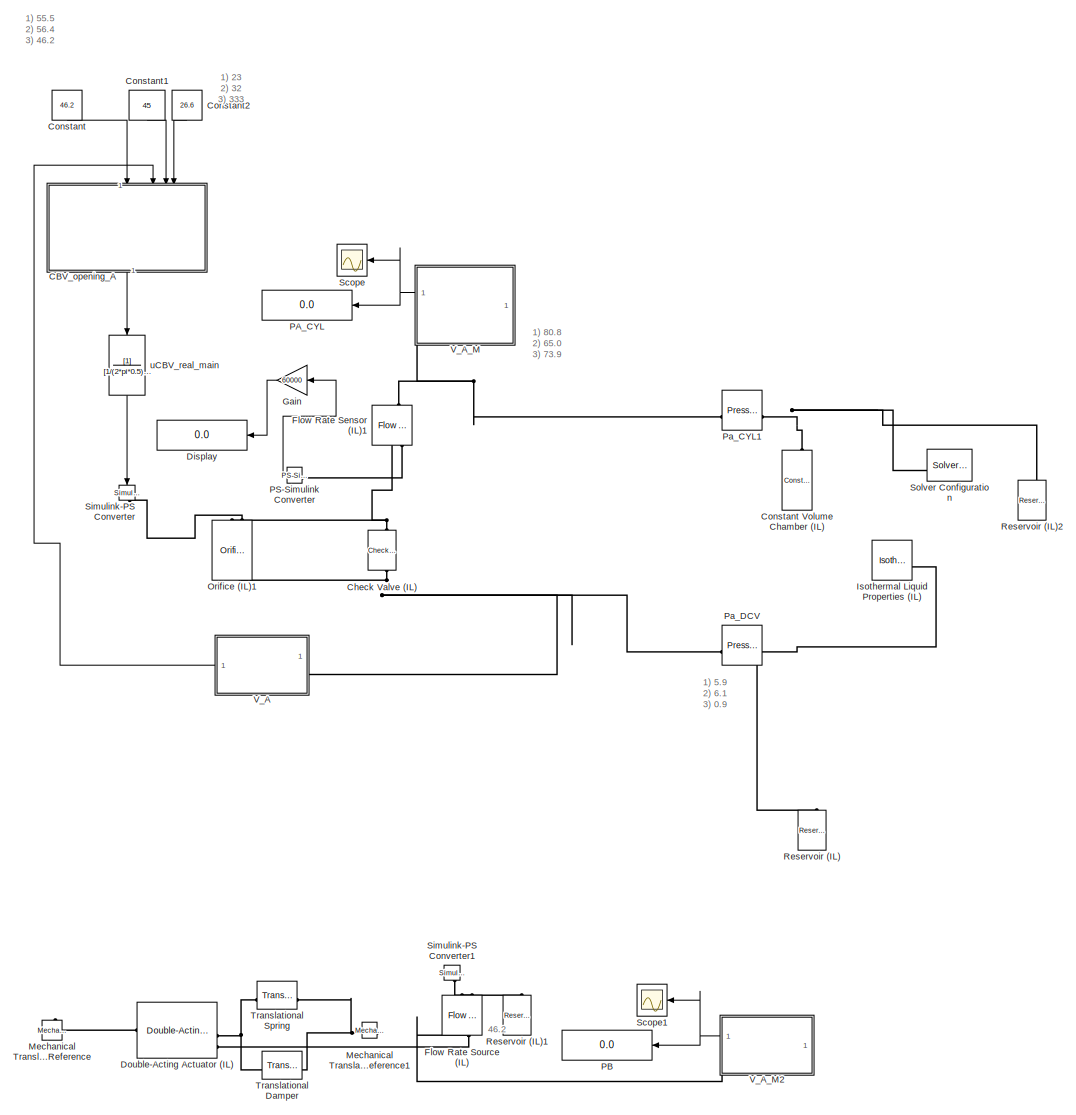
[diagram: root canvas - part 1/2, center side, full height]
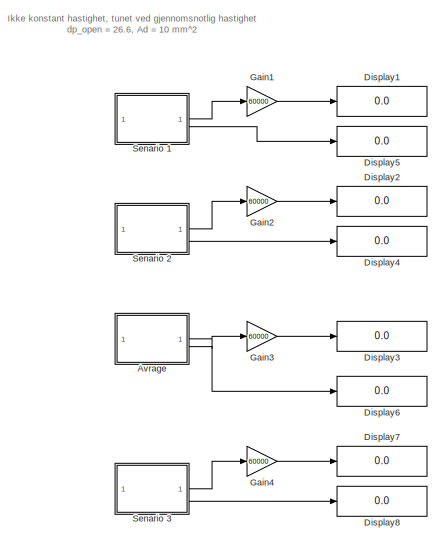
[diagram: root canvas - part 2/2, middle left region]
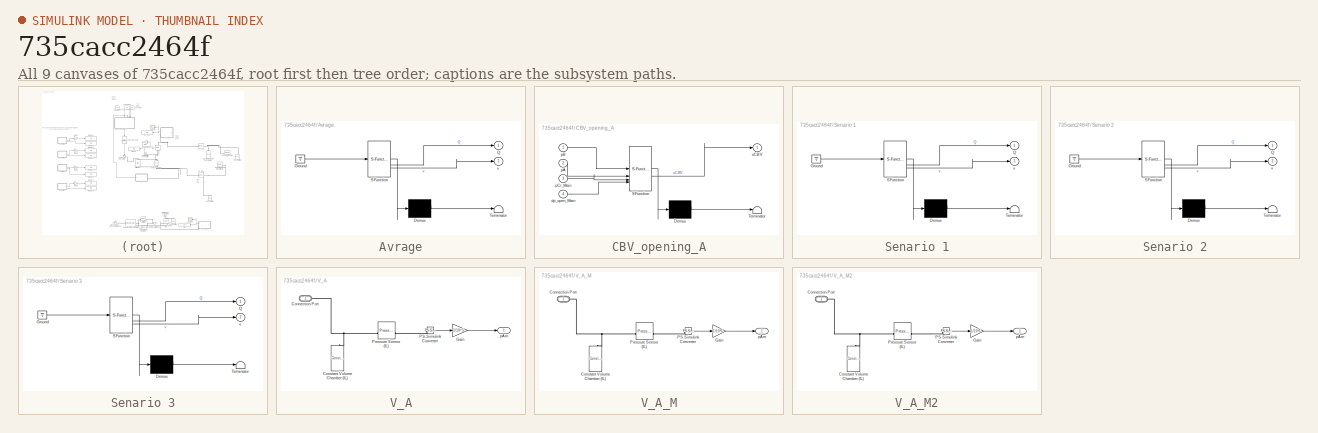
[diagram: thumbnail index - all 9 canvases of the model, root first then tree order]
MODEL slx_735cacc2464f
KIND model
CONFIG AbsTol = auto
CONFIG EnableMultiTasking = off
CONFIG FixedStep = auto
CONFIG MaxStep = auto
CONFIG MinStep = auto
CONFIG RelTol = 1e-3
CONFIG SampleTimeConstraint = Unconstrained
CONFIG SolverName = VariableStepAuto
CONFIG StartTime = 0.0
CONFIG StopTime = 20
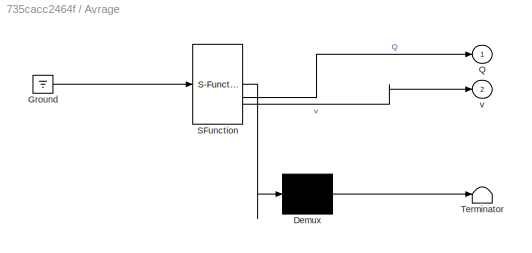
BLOCK [SubSystem] Avrage
  ErrorFcn = Stateflow.Translate.translate
  PermitHierarchicalResolution = ExplicitOnly
  SFBlockType = MATLAB Function
  TreatAsAtomicUnit = on
BLOCK [Demux] Avrage/ Demux 
  Outputs = 1
BLOCK [Ground] Avrage/ Ground 
BLOCK [S-Function] Avrage/ SFunction 
  EnableBusSupport = on
  FunctionName = sf_sfun
  PortCounts = [1 3]
  SFcnIsStateOwnerBlock = off
  SFunctionDeploymentMode = off
  Tag = Stateflow S-Function 4
BLOCK [Terminator] Avrage/ Terminator 
BLOCK [Outport] Avrage/Q
BLOCK [Outport] Avrage/v
  Port = 2
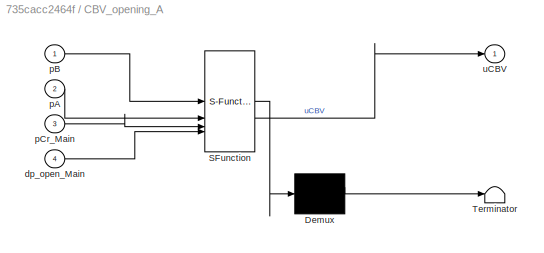
BLOCK [SubSystem] CBV_opening_A
  ErrorFcn = Stateflow.Translate.translate
  NameLocation = right
  PermitHierarchicalResolution = ExplicitOnly
  SFBlockType = MATLAB Function
  TreatAsAtomicUnit = on
BLOCK [Demux] CBV_opening_A/ Demux 
  Outputs = 1
BLOCK [S-Function] CBV_opening_A/ SFunction 
  EnableBusSupport = on
  FunctionName = sf_sfun
  PortCounts = [4 2]
  SFcnIsStateOwnerBlock = off
  SFunctionDeploymentMode = off
  Tag = Stateflow S-Function 3
BLOCK [Terminator] CBV_opening_A/ Terminator 
BLOCK [Inport] CBV_opening_A/dp_open_Main
  Port = 4
BLOCK [Inport] CBV_opening_A/pA
  Port = 2
BLOCK [Inport] CBV_opening_A/pB
BLOCK [Inport] CBV_opening_A/pCr_Main
  Port = 3
BLOCK [Outport] CBV_opening_A/uCBV
BLOCK [Reference] Check Valve (IL)  REF=SimscapeFluids_lib/Isothermal Liquid/Valves & Orifices/Directional Control
Valves/Check Valve (IL)
  NameLocation = right
  SourceBlock = SimscapeFluids_lib/Isothermal Liquid/Valves & Orifices/Directional Control\nValves/Check Valve (IL)
  SourceType = Check Valve (IL)
BLOCK [Constant] Constant
  NameLocation = left
  Value = 46.2
BLOCK [Reference] Constant Volume Chamber (IL)  REF=fl_lib/Isothermal Liquid/Elements/Constant Volume
Chamber (IL)
  NameLocation = right
  SourceBlock = fl_lib/Isothermal Liquid/Elements/Constant Volume\nChamber (IL)
  SourceType = Constant Volume\nChamber (IL)
BLOCK [Constant] Constant1
  NameLocation = left
  Value = 45
BLOCK [Constant] Constant2
  NameLocation = left
  Value = 26.6
  VectorParams1D = off
BLOCK [Display] Display
  Decimation = 1
  NameLocation = top
BLOCK [Display] Display1
  Decimation = 1
BLOCK [Display] Display2
  Decimation = 1
BLOCK [Display] Display3
  Decimation = 1
BLOCK [Display] Display4
  Decimation = 1
BLOCK [Display] Display5
  Decimation = 1
BLOCK [Display] Display6
  Decimation = 1
BLOCK [Display] Display7
  Decimation = 1
BLOCK [Display] Display8
  Decimation = 1
BLOCK [Reference] Double-Acting Actuator (IL)  REF=SimscapeFluids_lib/Isothermal Liquid/Actuators/Double-Acting
Actuator (IL)
  Commented = on
  SourceBlock = SimscapeFluids_lib/Isothermal Liquid/Actuators/Double-Acting\nActuator (IL)
  SourceType = Double-Acting\nActuator (IL)
BLOCK [Reference] Flow Rate Sensor (IL)1  REF=fl_lib/Isothermal Liquid/Sensors/Flow Rate Sensor
(IL)
  NameLocation = left
  SourceBlock = fl_lib/Isothermal Liquid/Sensors/Flow Rate Sensor\n(IL)
  SourceType = Flow Rate Sensor\n(IL)
BLOCK [Reference] Flow Rate Source (IL)  REF=fl_lib/Isothermal Liquid/Sources/Flow Rate Source
(IL)
  Commented = on
  NameLocation = left
  SourceBlock = fl_lib/Isothermal Liquid/Sources/Flow Rate Source\n(IL)
  SourceType = Flow Rate Source\n(IL)
BLOCK [Gain] Gain
  Gain = 60000
  NameLocation = top
BLOCK [Gain] Gain1
  Gain = 60000
BLOCK [Gain] Gain2
  Gain = 60000
BLOCK [Gain] Gain3
  Gain = 60000
BLOCK [Gain] Gain4
  Gain = 60000
BLOCK [Reference] Isothermal Liquid Properties (IL)  REF=fl_lib/Isothermal Liquid/Utilities/Isothermal Liquid
Properties (IL)
  SourceBlock = fl_lib/Isothermal Liquid/Utilities/Isothermal Liquid\nProperties (IL)
  SourceType = Isothermal Liquid\nProperties (IL)
BLOCK [Reference] Mechanical Translational Reference  REF=fl_lib/Mechanical/Translational
Elements/Mechanical
Translational
Reference
  Commented = on
  NameLocation = right
  SourceBlock = fl_lib/Mechanical/Translational\nElements/Mechanical\nTranslational\nReference
  SourceType = Mechanical\nTranslational\nReference
BLOCK [Reference] Mechanical Translational Reference1  REF=fl_lib/Mechanical/Translational
Elements/Mechanical
Translational
Reference
  Commented = on
  NameLocation = top
  SourceBlock = fl_lib/Mechanical/Translational\nElements/Mechanical\nTranslational\nReference
  SourceType = Mechanical\nTranslational\nReference
BLOCK [Reference] Orifice (IL)1  REF=SimscapeFluids_lib/Isothermal Liquid/Valves & Orifices/Orifices/Orifice (IL)
  NameLocation = left
  SourceBlock = SimscapeFluids_lib/Isothermal Liquid/Valves & Orifices/Orifices/Orifice (IL)
  SourceType = Orifice (IL)
BLOCK [Display] PA_CYL
  Decimation = 1
  NameLocation = top
BLOCK [Display] PB
  Commented = on
  Decimation = 1
  NameLocation = top
BLOCK [Reference] PS-Simulink Converter  REF=nesl_utility/PS-Simulink
Converter
  NameLocation = top
  SourceBlock = nesl_utility/PS-Simulink\nConverter
  SourceType = PS-Simulink\nConverter
BLOCK [Reference] Pa_CYL1  REF=fl_lib/Isothermal Liquid/Sources/Pressure Source (IL)
  SourceBlock = fl_lib/Isothermal Liquid/Sources/Pressure Source (IL)
  SourceType = Pressure Source (IL)
BLOCK [Reference] Pa_DCV  REF=fl_lib/Isothermal Liquid/Sources/Pressure Source (IL)
  SourceBlock = fl_lib/Isothermal Liquid/Sources/Pressure Source (IL)
  SourceType = Pressure Source (IL)
BLOCK [Reference] Reservoir (IL)  REF=fl_lib/Isothermal Liquid/Elements/Reservoir (IL)
  NameLocation = right
  SourceBlock = fl_lib/Isothermal Liquid/Elements/Reservoir (IL)
  SourceType = Reservoir (IL)
BLOCK [Reference] Reservoir (IL)1  REF=fl_lib/Isothermal Liquid/Elements/Reservoir (IL)
  Commented = on
  NameLocation = right
  SourceBlock = fl_lib/Isothermal Liquid/Elements/Reservoir (IL)
  SourceType = Reservoir (IL)
BLOCK [Reference] Reservoir (IL)2  REF=fl_lib/Isothermal Liquid/Elements/Reservoir (IL)
  NameLocation = right
  SourceBlock = fl_lib/Isothermal Liquid/Elements/Reservoir (IL)
  SourceType = Reservoir (IL)
BLOCK [Scope] Scope
  Floating = off
  NameLocation = top
  NumInputPorts = 1
  ScopeSpecificationString = Simulink.scopes.TimeScopeBlockCfg('CurrentConfiguration', extmgr.ConfigurationSet(extmgr.Configuration('Core','General UI',true),extmgr.Configuration('Core','Source UI',true),extmgr.Configuration('Sources','WiredSimulink',true),extmgr.Configuration('Visuals','Time Domain',true),extmgr.Configuration('Tools','Plot Navigation',true),extmgr.Configuration('Tools','Measurements',true)),'Version','2024b'...<+1ch>
BLOCK [Scope] Scope1
  Commented = on
  Floating = off
  NameLocation = top
  NumInputPorts = 1
  ScopeSpecificationString = Simulink.scopes.TimeScopeBlockCfg('CurrentConfiguration', extmgr.ConfigurationSet(extmgr.Configuration('Core','General UI',true),extmgr.Configuration('Core','Source UI',true),extmgr.Configuration('Sources','WiredSimulink',true,'DataLoggingVariableName','ScopeData1'),extmgr.Configuration('Visuals','Time Domain',true),extmgr.Configuration('Tools','Plot Navigation',true),extmgr.Configuration('Tools',...<+40ch>
BLOCK [SubSystem] Senario 1
  ErrorFcn = Stateflow.Translate.translate
  PermitHierarchicalResolution = ExplicitOnly
  SFBlockType = MATLAB Function
  TreatAsAtomicUnit = on
BLOCK [Demux] Senario 1/ Demux 
  Outputs = 1
BLOCK [Ground] Senario 1/ Ground 
BLOCK [S-Function] Senario 1/ SFunction 
  EnableBusSupport = on
  FunctionName = sf_sfun
  PortCounts = [1 3]
  SFcnIsStateOwnerBlock = off
  SFunctionDeploymentMode = off
  Tag = Stateflow S-Function 2
BLOCK [Terminator] Senario 1/ Terminator 
BLOCK [Outport] Senario 1/Q
BLOCK [Outport] Senario 1/v
  Port = 2
BLOCK [SubSystem] Senario 2
  ErrorFcn = Stateflow.Translate.translate
  PermitHierarchicalResolution = ExplicitOnly
  SFBlockType = MATLAB Function
  TreatAsAtomicUnit = on
BLOCK [Demux] Senario 2/ Demux 
  Outputs = 1
BLOCK [Ground] Senario 2/ Ground 
BLOCK [S-Function] Senario 2/ SFunction 
  EnableBusSupport = on
  FunctionName = sf_sfun
  PortCounts = [1 3]
  SFcnIsStateOwnerBlock = off
  SFunctionDeploymentMode = off
  Tag = Stateflow S-Function 1
BLOCK [Terminator] Senario 2/ Terminator 
BLOCK [Outport] Senario 2/Q
BLOCK [Outport] Senario 2/v
  Port = 2
BLOCK [SubSystem] Senario 3
  ErrorFcn = Stateflow.Translate.translate
  PermitHierarchicalResolution = ExplicitOnly
  SFBlockType = MATLAB Function
  TreatAsAtomicUnit = on
BLOCK [Demux] Senario 3/ Demux 
  Outputs = 1
BLOCK [Ground] Senario 3/ Ground 
BLOCK [S-Function] Senario 3/ SFunction 
  EnableBusSupport = on
  FunctionName = sf_sfun
  PortCounts = [1 3]
  SFcnIsStateOwnerBlock = off
  SFunctionDeploymentMode = off
  Tag = Stateflow S-Function 5
BLOCK [Terminator] Senario 3/ Terminator 
BLOCK [Outport] Senario 3/Q
BLOCK [Outport] Senario 3/v
  Port = 2
BLOCK [Reference] Simulink-PS Converter  REF=nesl_utility/Simulink-PS
Converter
  NameLocation = left
  SourceBlock = nesl_utility/Simulink-PS\nConverter
  SourceType = Simulink-PS\nConverter
BLOCK [Reference] Simulink-PS Converter1  REF=nesl_utility/Simulink-PS
Converter
  Commented = on
  NameLocation = left
  SourceBlock = nesl_utility/Simulink-PS\nConverter
  SourceType = Simulink-PS\nConverter
BLOCK [Reference] Solver Configuration  REF=nesl_utility/Solver
Configuration
  NameLocation = top
  SourceBlock = nesl_utility/Solver\nConfiguration
  SourceType = Solver\nConfiguration
BLOCK [Reference] Translational Damper  REF=fl_lib/Mechanical/Translational
Elements/Translational Damper
  Commented = on
  SourceBlock = fl_lib/Mechanical/Translational\nElements/Translational Damper
  SourceType = Translational Damper
BLOCK [Reference] Translational Spring  REF=fl_lib/Mechanical/Translational
Elements/Translational Spring
  Commented = on
  SourceBlock = fl_lib/Mechanical/Translational\nElements/Translational Spring
  SourceType = Translational Spring
BLOCK [SubSystem] V_A
  NameLocation = top
BLOCK [PMIOPort] V_A/Connection Port
  Side = Left
BLOCK [Reference] V_A/Constant Volume Chamber (IL)  REF=fl_lib/Isothermal Liquid/Elements/Constant Volume
Chamber (IL)
  NameLocation = right
  SourceBlock = fl_lib/Isothermal Liquid/Elements/Constant Volume\nChamber (IL)
  SourceType = Constant Volume\nChamber (IL)
BLOCK [Gain] V_A/Gain
  Gain = 1/10^5
BLOCK [Reference] V_A/PS-Simulink Converter  REF=nesl_utility/PS-Simulink
Converter
  SourceBlock = nesl_utility/PS-Simulink\nConverter
  SourceType = PS-Simulink\nConverter
BLOCK [Reference] V_A/Pressure Sensor (IL)  REF=fl_lib/Isothermal Liquid/Sensors/Pressure Sensor (IL)
  SourceBlock = fl_lib/Isothermal Liquid/Sensors/Pressure Sensor (IL)
  SourceType = Pressure Sensor (IL)
BLOCK [Outport] V_A/pAm
BLOCK [SubSystem] V_A_M
  NameLocation = top
  PortSchema = {"entries":[{"content":{"sides":[{"content":{},"type":"ConnectorPlacement.EquallySpacedRectSide","uuid":"4d44c916-36b4-4891-95d7-b71f690fb118"},{"content":{"connectorIds":["Out1"],"side":"RIGHT"},"type":"ConnectorPlacement.EquallySpacedRectSide","uuid":"b0ccc4ef-865c-4258-9950-e2b42fb6e66f"},{"content":{"side":"TOP"},"type":"ConnectorPlacement.EquallySpacedRectSide","uuid":"000783d9-e516-4133-ab05...<+352ch>
BLOCK [PMIOPort] V_A_M/Connection Port
  Side = Right
BLOCK [Reference] V_A_M/Constant Volume Chamber (IL)  REF=fl_lib/Isothermal Liquid/Elements/Constant Volume
Chamber (IL)
  NameLocation = right
  SourceBlock = fl_lib/Isothermal Liquid/Elements/Constant Volume\nChamber (IL)
  SourceType = Constant Volume\nChamber (IL)
BLOCK [Gain] V_A_M/Gain
  Gain = 1/10^5
BLOCK [Reference] V_A_M/PS-Simulink Converter  REF=nesl_utility/PS-Simulink
Converter
  SourceBlock = nesl_utility/PS-Simulink\nConverter
  SourceType = PS-Simulink\nConverter
BLOCK [Reference] V_A_M/Pressure Sensor (IL)  REF=fl_lib/Isothermal Liquid/Sensors/Pressure Sensor (IL)
  SourceBlock = fl_lib/Isothermal Liquid/Sensors/Pressure Sensor (IL)
  SourceType = Pressure Sensor (IL)
BLOCK [Outport] V_A_M/pAm
BLOCK [SubSystem] V_A_M2
  Commented = on
  NameLocation = top
  PortSchema = {"entries":[{"content":{"sides":[{"content":{},"type":"ConnectorPlacement.EquallySpacedRectSide","uuid":"4d44c916-36b4-4891-95d7-b71f690fb118"},{"content":{"connectorIds":["Out1"],"side":"RIGHT"},"type":"ConnectorPlacement.EquallySpacedRectSide","uuid":"b0ccc4ef-865c-4258-9950-e2b42fb6e66f"},{"content":{"side":"TOP"},"type":"ConnectorPlacement.EquallySpacedRectSide","uuid":"000783d9-e516-4133-ab05...<+352ch>
BLOCK [PMIOPort] V_A_M2/Connection Port
  Side = Right
BLOCK [Reference] V_A_M2/Constant Volume Chamber (IL)  REF=fl_lib/Isothermal Liquid/Elements/Constant Volume
Chamber (IL)
  NameLocation = right
  SourceBlock = fl_lib/Isothermal Liquid/Elements/Constant Volume\nChamber (IL)
  SourceType = Constant Volume\nChamber (IL)
BLOCK [Gain] V_A_M2/Gain
  Gain = 1/10^5
BLOCK [Reference] V_A_M2/PS-Simulink Converter  REF=nesl_utility/PS-Simulink
Converter
  SourceBlock = nesl_utility/PS-Simulink\nConverter
  SourceType = PS-Simulink\nConverter
BLOCK [Reference] V_A_M2/Pressure Sensor (IL)  REF=fl_lib/Isothermal Liquid/Sensors/Pressure Sensor (IL)
  SourceBlock = fl_lib/Isothermal Liquid/Sensors/Pressure Sensor (IL)
  SourceType = Pressure Sensor (IL)
BLOCK [Outport] V_A_M2/pAm
BLOCK [TransferFcn] uCBV_real_main
  Denominator = [1/(2*pi*0.5) 1]
  NameLocation = right
ANNOTATION (root): 1) 23 2) 32 3) 333
ANNOTATION (root): 1) 5.9 2) 6.1 3) 0.9
ANNOTATION (root): 1) 55.5 2) 56.4 3) 46.2
ANNOTATION (root): 1) 80.8 2) 65.0 3) 73.9
ANNOTATION (root): 46.2
ANNOTATION (root): Ikke konstant hastighet, tunet ved gjennomsnotlig hastighet dp_open = 26.6, Ad = 10 mm^2
LINE Avrage:1 -> Gain3:1
LINE Avrage:2 -> Display6:1
LINE CBV_opening_A:1 -> uCBV_real_main:1
LINE Constant1:1 -> CBV_opening_A:3
LINE Constant2:1 -> CBV_opening_A:4
LINE Constant:1 -> CBV_opening_A:1
LINE Gain1:1 -> Display1:1
LINE Gain2:1 -> Display2:1
LINE Gain3:1 -> Display3:1
LINE Gain4:1 -> Display7:1
LINE Gain:1 -> Display:1
LINE PS-Simulink Converter:1 -> Gain:1
LINE Senario 1:1 -> Gain1:1
LINE Senario 1:2 -> Display5:1
LINE Senario 2:1 -> Gain2:1
LINE Senario 2:2 -> Display4:1
LINE Senario 3:1 -> Gain4:1
LINE Senario 3:2 -> Display8:1
LINE V_A/Gain:1 -> V_A/pAm:1
LINE V_A/PS-Simulink Converter:1 -> V_A/Gain:1
LINE V_A:1 -> CBV_opening_A:2
LINE V_A_M/Gain:1 -> V_A_M/pAm:1
LINE V_A_M/PS-Simulink Converter:1 -> V_A_M/Gain:1
LINE V_A_M2/Gain:1 -> V_A_M2/pAm:1
LINE V_A_M2/PS-Simulink Converter:1 -> V_A_M2/Gain:1
NET V_A_M2:1 -> PB:1, Scope1:1
NET V_A_M:1 -> PA_CYL:1, Scope:1
LINE uCBV_real_main:1 -> Simulink-PS Converter:1
PNET net1: Check Valve (IL):LConn1 -- Orifice (IL)1:RConn1 -- Pa_DCV:RConn1 -- V_A:LConn1
PNET net2: Check Valve (IL):RConn1 -- Flow Rate Sensor (IL)1:RConn1 -- Orifice (IL)1:LConn1
PNET net3: Constant Volume Chamber (IL):LConn1 -- Pa_CYL1:LConn1 -- Reservoir (IL)2:LConn1 -- Solver Configuration:RConn1
PLINE Double-Acting Actuator (IL):LConn1 -- Mechanical Translational Reference:LConn1
PNET net4: Double-Acting Actuator (IL):RConn2 -- Translational Damper:LConn1 -- Translational Spring:LConn1
PNET net5: Double-Acting Actuator (IL):RConn3 -- Flow Rate Source (IL):RConn1 -- V_A_M2:RConn1
PNET net6: Flow Rate Sensor (IL)1:LConn1 -- Pa_CYL1:RConn1 -- V_A_M:RConn1
PLINE Flow Rate Sensor (IL)1:RConn2 -- PS-Simulink Converter:LConn1
PLINE Flow Rate Source (IL):LConn1 -- Reservoir (IL)1:LConn1
PLINE Flow Rate Source (IL):LConn2 -- Simulink-PS Converter1:RConn1
PNET net7: Isothermal Liquid Properties (IL):RConn1 -- Pa_DCV:LConn1 -- Reservoir (IL):LConn1
PNET net8: Mechanical Translational Reference1:LConn1 -- Translational Damper:RConn1 -- Translational Spring:RConn1
PLINE Orifice (IL)1:LConn2 -- Simulink-PS Converter:RConn1
PNET net9: V_A/Connection Port:RConn1 -- V_A/Constant Volume Chamber (IL):LConn1 -- V_A/Pressure Sensor (IL):LConn1
PLINE V_A/PS-Simulink Converter:LConn1 -- V_A/Pressure Sensor (IL):RConn1
PNET net10: V_A_M/Connection Port:RConn1 -- V_A_M/Constant Volume Chamber (IL):LConn1 -- V_A_M/Pressure Sensor (IL):LConn1
PLINE V_A_M/PS-Simulink Converter:LConn1 -- V_A_M/Pressure Sensor (IL):RConn1
PNET net11: V_A_M2/Connection Port:RConn1 -- V_A_M2/Constant Volume Chamber (IL):LConn1 -- V_A_M2/Pressure Sensor (IL):LConn1
PLINE V_A_M2/PS-Simulink Converter:LConn1 -- V_A_M2/Pressure Sensor (IL):RConn1
note: NET lines group one-source signal fan-out (src -> all destinations, sorted); 1:1 wires keep LINE; PNET lines group multi-terminal physical nets as a canonical sorted terminal list (undirected conserving connections); 2-terminal nets keep the pairwise PLINE form
CHART Senario 2 states=1 transitions=1
  STATE_LABEL 'eML_blk_kernel()'
  STATE_LABEL 'SCRIPT:\nfunction [Q,v] = fcn()\np_max = 0.58; %posistion\np_min=0.56; %posistion\nt_max = 547.2; % tid\nt_min = 543.9; %tid\n\nAreal_A_side_main = 20106.2/1e6; % m^2\n\nv = (p_max-p_min)/(t_max-t_min); % m/s hastighet\nQ = v*Areal_A_side_main;% m^3/s\n'
CHART Senario 1 states=1 transitions=1
  STATE_LABEL 'eML_blk_kernel()'
  STATE_LABEL 'SCRIPT:\nfunction [Q,v] = fcn()\np_max = 0.46; %posistion\np_min=0.43; %posistion\nt_max = 563.9; % tid\nt_min = 560.3; %tid\n\nAreal_A_side_main = 20106.2/1e6; % m^2\n\nv = (p_max-p_min)/(t_max-t_min); % m/s hastighet\nQ = v*Areal_A_side_main;% m^3/s\n'
CHART CBV_opening_A states=1 transitions=1
  STATE_LABEL 'eML_blk_kernel()'
  STATE_LABEL 'SCRIPT:\nfunction uCBV = fcn(pB,pA,pCr_Main, dp_open_Main)\n% uCBV = (alpha*pB + pAm - pCr - (alpha + 1)*pA)/dpopen;\nuCBV = (pB - pCr_Main- pA)/dp_open_Main; %vented\n%uCBV = 0.25;\nif uCBV < 0\n    uCBV = 0;\nelseif uCBV > 1\n    uCBV = 1;\nend\n\n'
CHART Avrage states=1 transitions=1
  STATE_LABEL 'eML_blk_kernel()'
  STATE_LABEL 'SCRIPT:\nfunction [Q,v] = fcn()\np_max = 0.65; %posistion\np_min=0.32; %posistion\nt_max = 579.2; % tid\nt_min = 534.0; %tid\n\nAreal_A_side_main = 20106/1e6; % m^2\n\nv = (p_max-p_min)/(t_max-t_min); % m/s hastighet\nQ = v*Areal_A_side_main;% m^3/s\n'
CHART Senario 3 states=1 transitions=1
  STATE_LABEL 'eML_blk_kernel()'
  STATE_LABEL 'SCRIPT:\nfunction [Q,v] = fcn()\np_max = 0.477; %posistion\np_min=0.465; %posistion\nt_max = 424.6; % tid\nt_min = 414.9; %tid\n\nAreal_A_side_main = 20106.2/1e6; % m^2\n\nv = (p_max-p_min)/(t_max-t_min); % m/s hastighet\nQ = v*Areal_A_side_main;% m^3/s\n'
CHART  states=0 transitions=0
CHART  states=0 transitions=0
CHART  states=0 transitions=0
CHART  states=0 transitions=0
CHART  states=0 transitions=0
